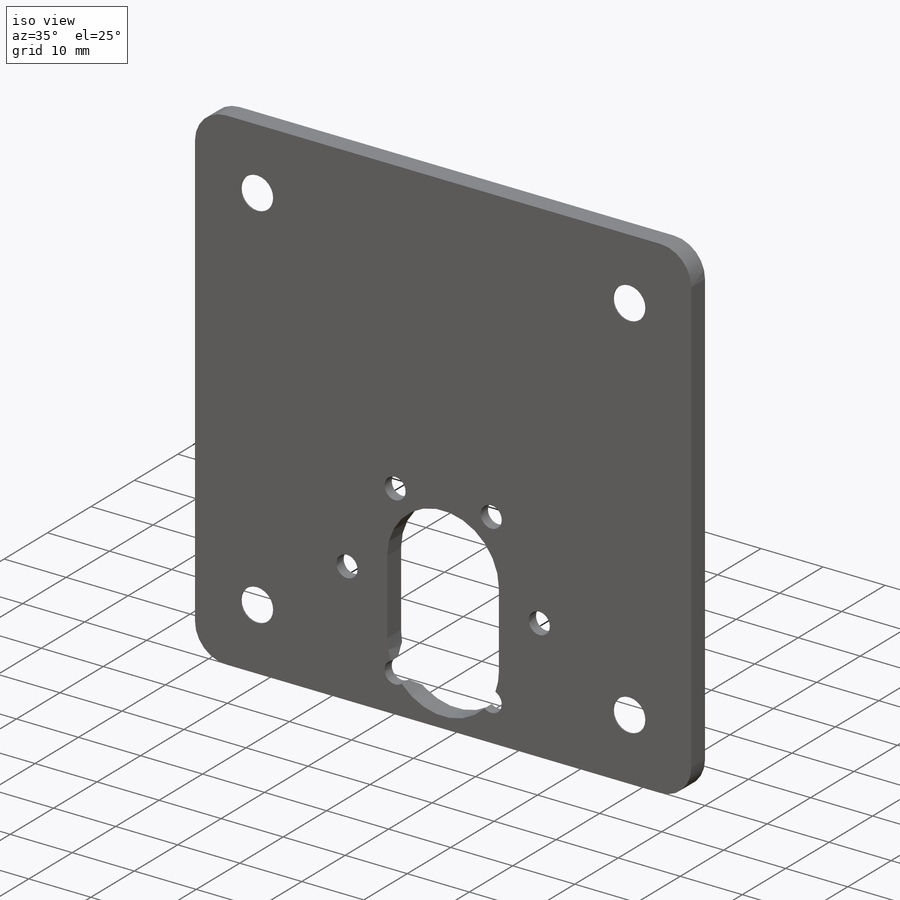
[diagram: iso view]
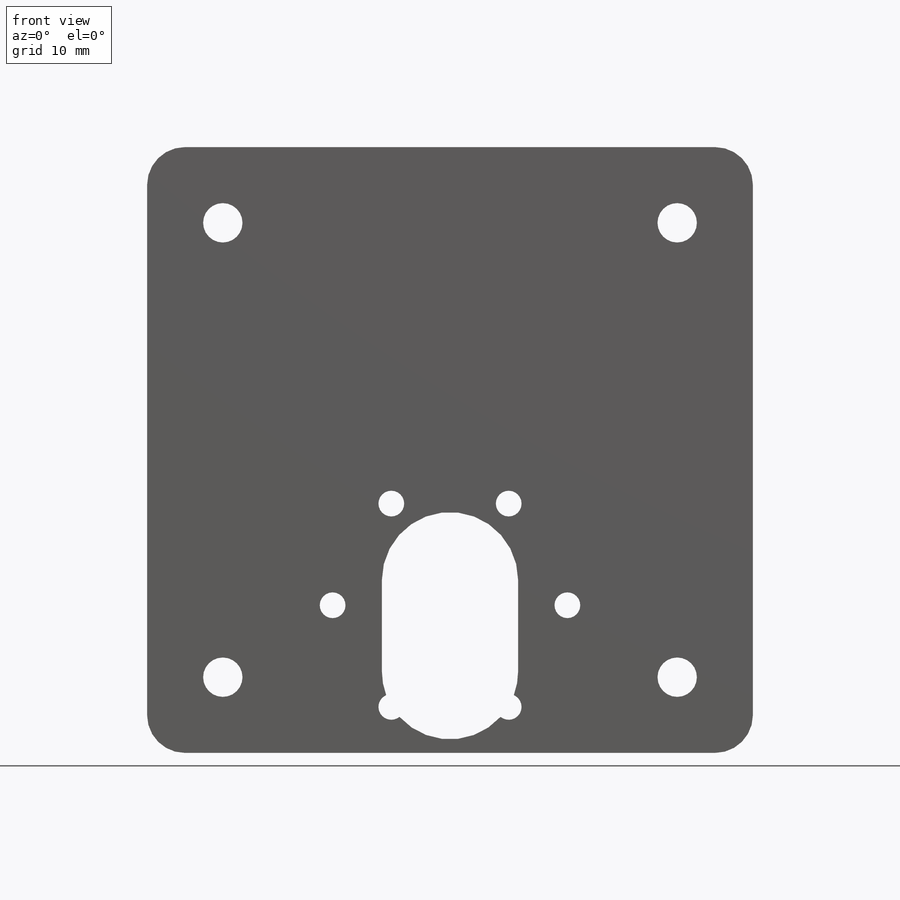
[diagram: front view]
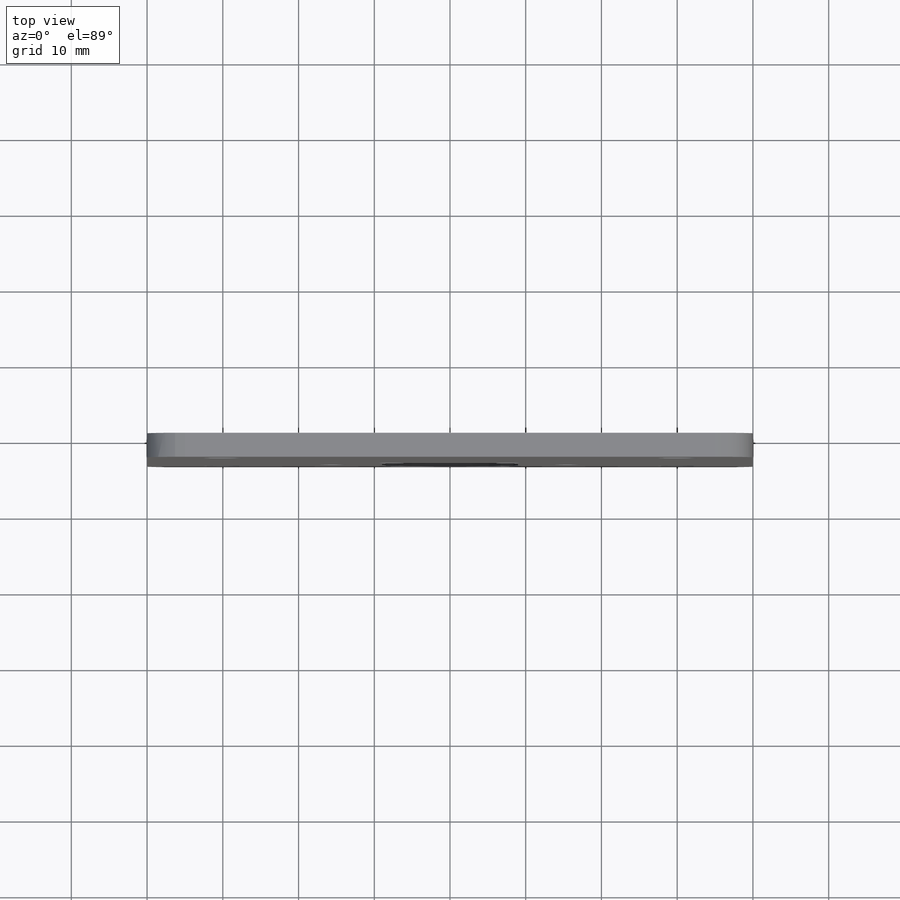
[diagram: top view]
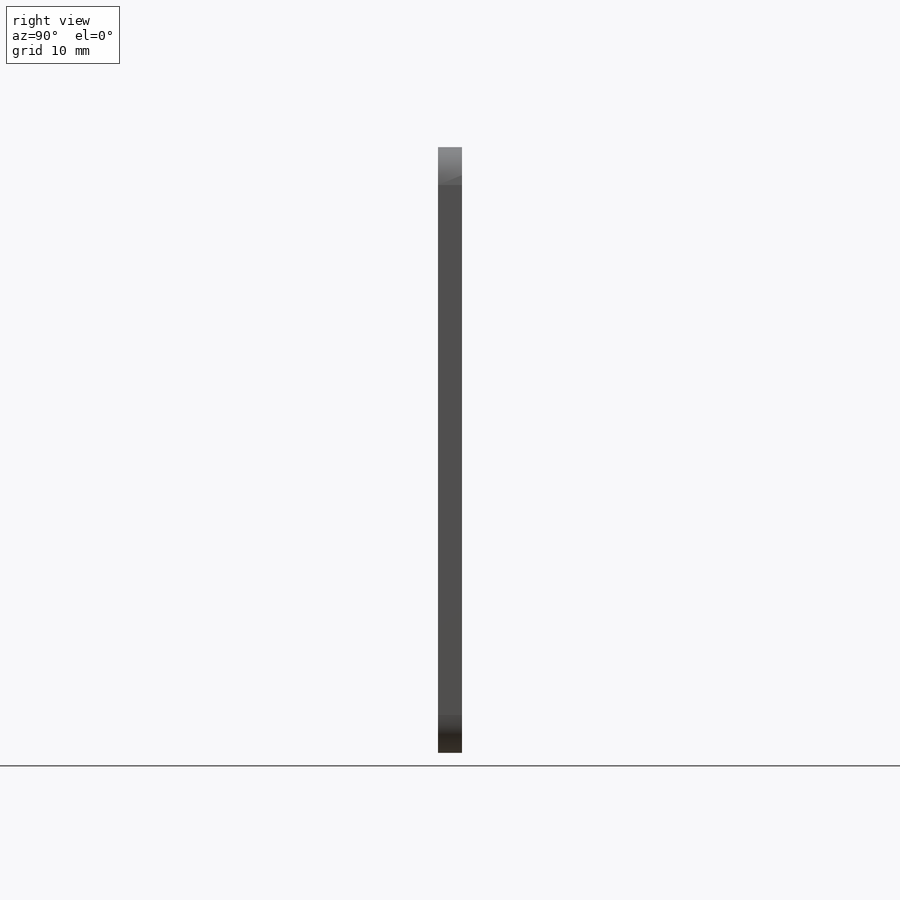
[diagram: right view]
SOLIDWORKS PART (.sldprt)
format: sldprt  version: not decoded by parser v0  size: 242,688 bytes
history: native  units: mm
features: sketch x3, chamfer x2, material x1, extrude x1, cut_extrude x1 (+13 scaffold rows collapsed)
feature tree (21):
  scaffold x13  (default folders/planes/origin — collapsed)
  material  "Material <not specified>"
  sketch  "Sketch1"  dims[D3=5.0mm D6=5.2mm D1=80.0mm D2=80.0mm D4=10.0mm D5=10.0mm]
  extrude  "Boss-Extrude1"  Depth=3.175mm
  chamfer  "Chamfer1"  Distance=3mm Angle=45deg
  sketch  "Sketch2"  dims[D1=19.5mm]
  sketch  "Sketch4"  dims[D8=9.0mm D7=12.0mm D1=0.2mm D2=0.2mm D3=0.2mm D4=0.2mm D5=0.2mm D6=0.2mm]
  cut_extrude  "Cut-Extrude2"  [1 undecoded]
  chamfer  "Chamfer2"  Distance=1.5mm Angle=45deg
decode coverage: 6 of 7 modeling features carry decoded parameters
note: 1 parameter value undecoded
note: suppression state not decoded; provenance and decode notes live in map.json
